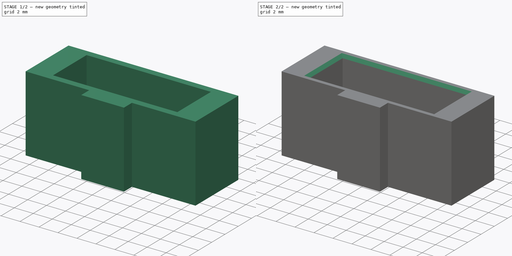
[diagram: build sequence overview — one tinted view per stage of 2, left to right]
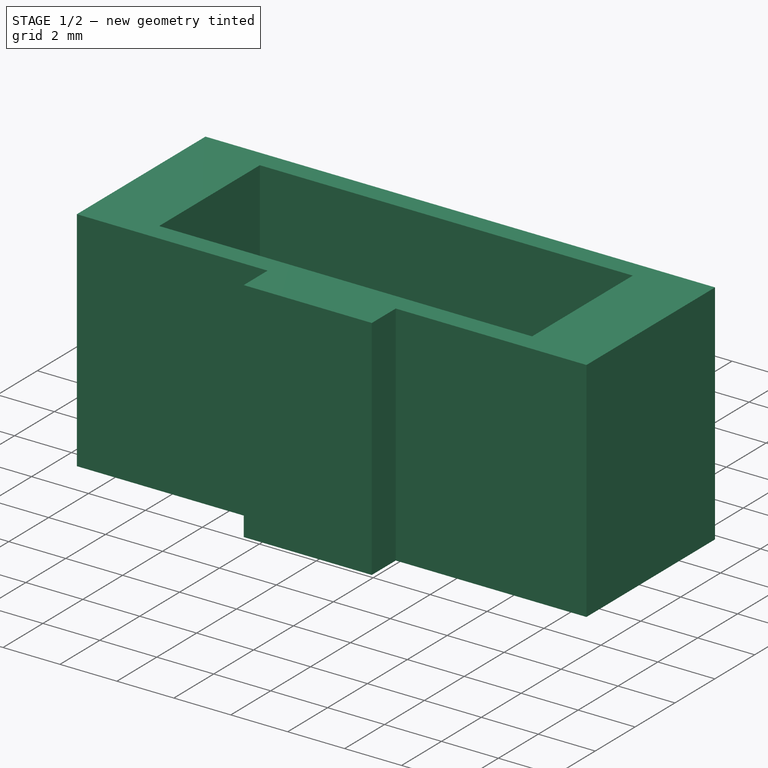
[diagram: stage 1 of 2 — iso view after this stage's code; geometry added in this stage tinted green]
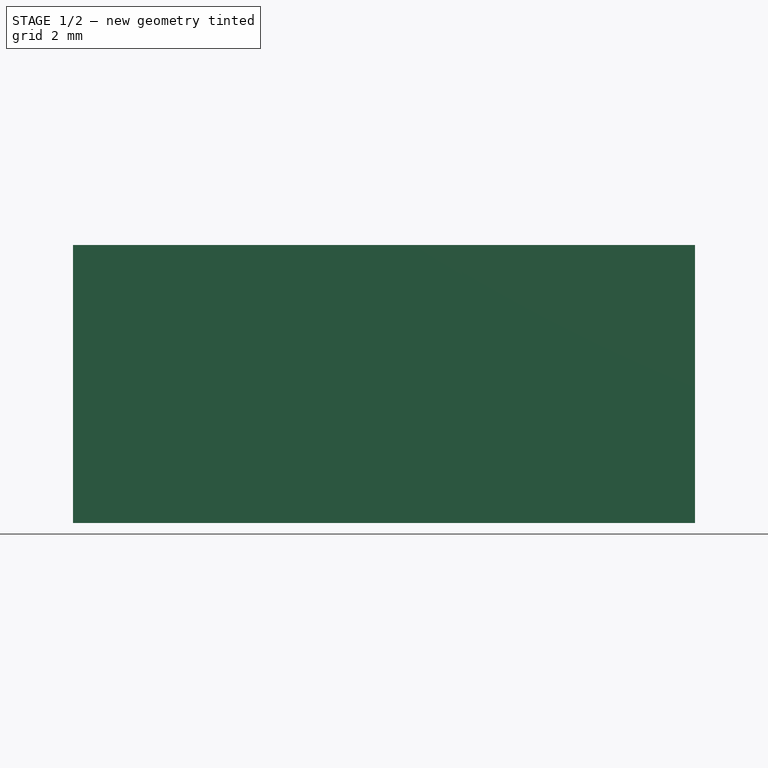
[diagram: stage 1 of 2 — front view after this stage's code; geometry added in this stage tinted green]
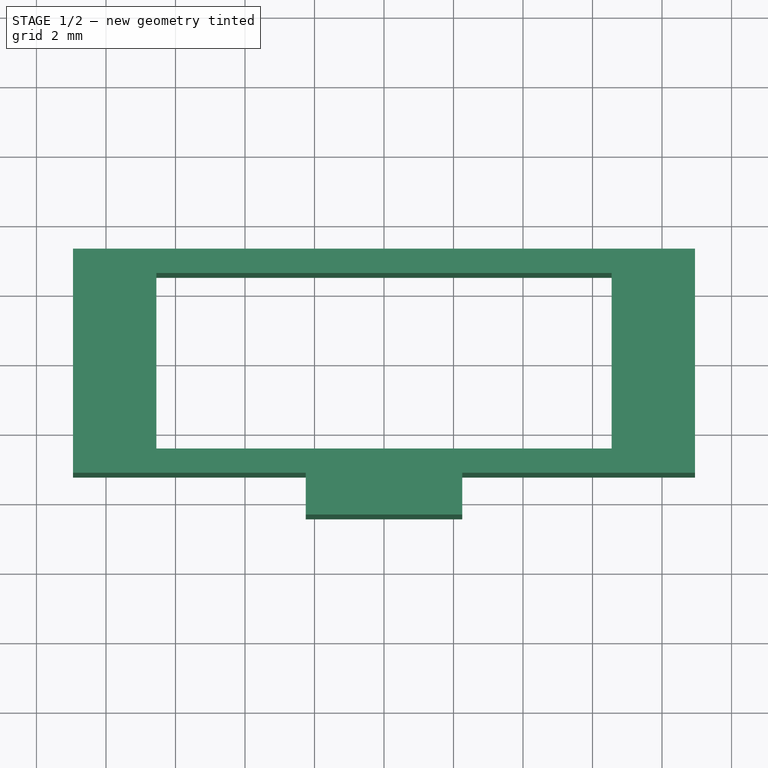
[diagram: stage 1 of 2 — top view after this stage's code; geometry added in this stage tinted green]
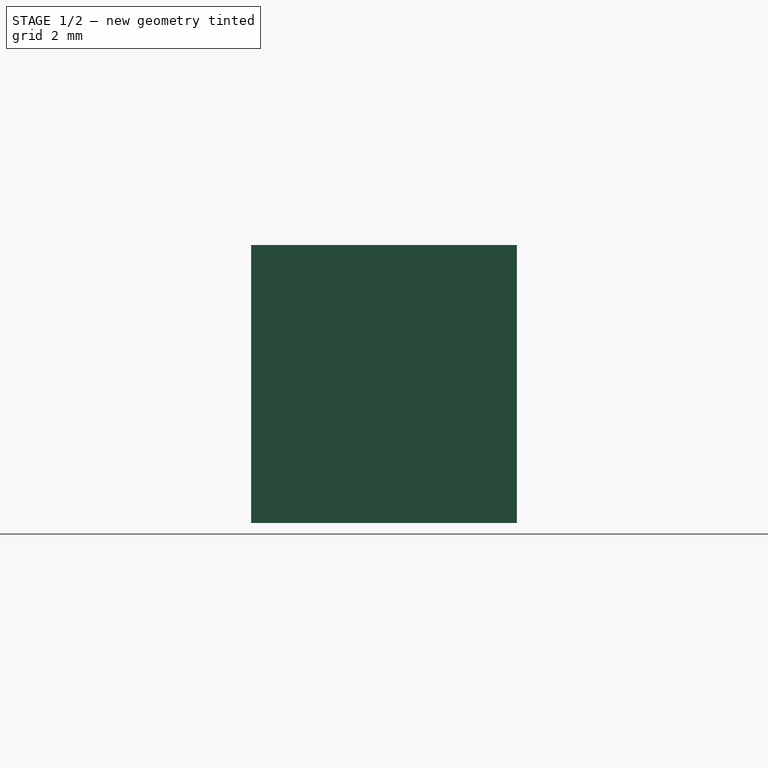
[diagram: stage 1 of 2 — right view after this stage's code; geometry added in this stage tinted green]
FCSTD DOCUMENT  (FreeCAD 1.0R38641 +468 (Git))
Label: idc_sleeve
License: All rights reserved
LicenseURL: https://en.wikipedia.org/wiki/All_rights_reserved
objects: Sketcher::SketchObject×1, PartDesign::Pad×1, PartDesign::Chamfer×1, PartDesign::Body×1
note: 9 computed .brp shape members not serialized (recipe doc carries the construction recipe); baked Part::Feature solids carry a one-line shape summary decoded from their .brp

FEATURE [Sketcher::SketchObject] Sketch
  ArcFitTolerance = 1e-06
  AttachmentSupport = -> [XY_Plane]
  FullyConstrained = true
  MakeInternals = false
  MapMode = 5
  sketch-geometry (12):
    g0: LineSegment StartX=-6.55 StartY=2.525 StartZ=0 EndX=-6.55 EndY=-2.525 EndZ=0
    g1: LineSegment StartX=-6.55 StartY=-2.525 StartZ=0 EndX=6.55 EndY=-2.525 EndZ=0
    g2: LineSegment StartX=6.55 StartY=-2.525 StartZ=0 EndX=6.55 EndY=2.525 EndZ=0
    g3: LineSegment StartX=6.55 StartY=2.525 StartZ=0 EndX=-6.55 EndY=2.525 EndZ=0
    g4: LineSegment StartX=-8.95 StartY=3.225 StartZ=0 EndX=-8.95 EndY=-3.225 EndZ=0
    g5: LineSegment StartX=8.95 StartY=-3.225 StartZ=0 EndX=8.95 EndY=3.225 EndZ=0
    g6: LineSegment StartX=8.95 StartY=3.225 StartZ=0 EndX=-8.95 EndY=3.225 EndZ=0
    g7: LineSegment StartX=-8.95 StartY=-3.225 StartZ=0 EndX=-2.25 EndY=-3.225 EndZ=0
    g8: LineSegment StartX=-2.25 StartY=-3.225 StartZ=0 EndX=-2.25 EndY=-4.425 EndZ=0
    g9: LineSegment StartX=-2.25 StartY=-4.425 StartZ=0 EndX=2.25 EndY=-4.425 EndZ=0
    g10: LineSegment StartX=2.25 StartY=-4.425 StartZ=0 EndX=2.25 EndY=-3.225 EndZ=0
    g11: LineSegment StartX=2.25 StartY=-3.225 StartZ=0 EndX=8.95 EndY=-3.225 EndZ=0
  constraints (31):
    c: Coincident(g0,g1)
    c: Coincident(g1,g2)
    c: Coincident(g2,g3)
    c: Coincident(g3,g0)
    c: Vertical(g0)
    c: Horizontal(g1)
    c: Symmetric(g1,g2,g-1)
    c: Symmetric(g0,g2,g-2)
    c: DistanceY(g2,g2) = 5.05
    c: DistanceX(g3,g3) = 13.1
    c: Coincident(g5,g6)
    c: Coincident(g6,g4)
    c: Vertical(g4)
    c: Symmetric(g5,g4,g-2)
    c: Symmetric(g5,g5,g-1)
    c: DistanceY(g2,g5) = 0.7
    c: DistanceX(g2,g5) = 2.4
    c: Coincident(g4,g7)
    c: Horizontal(g7)
    c: Coincident(g7,g8)
    c: Vertical(g8)
    c: Coincident(g8,g9)
    c: Horizontal(g9)
    c: Coincident(g9,g10)
    c: Vertical(g10)
    c: Coincident(g10,g11)
    c: Coincident(g11,g5)
    c: Horizontal(g11)
    c: Symmetric(g7,g10,g-2)
    c: DistanceX(g9,g9) = 4.5
    c: DistanceY(g10,g10) = 1.2
FEATURE [PartDesign::Pad] Pad
  Direction = (0,0,1)
  Length = 8
  Length2 = 10
  Profile = -> Sketch
  ReferenceAxis = -> Sketch [N_Axis]
  Refine = true
  Suppressed = false
  Type = 0
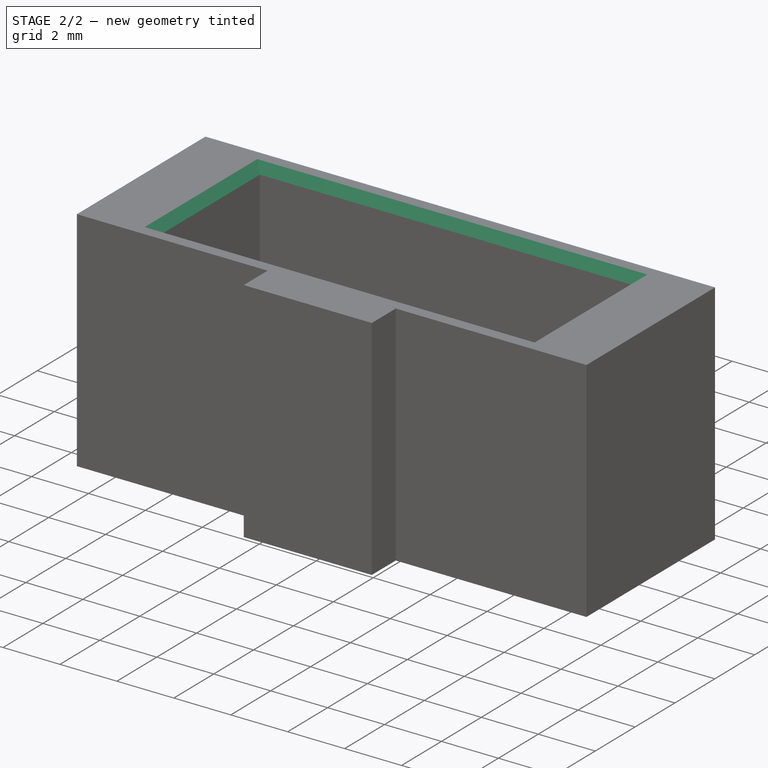
[diagram: stage 2 of 2 — iso view after this stage's code; geometry added in this stage tinted green]
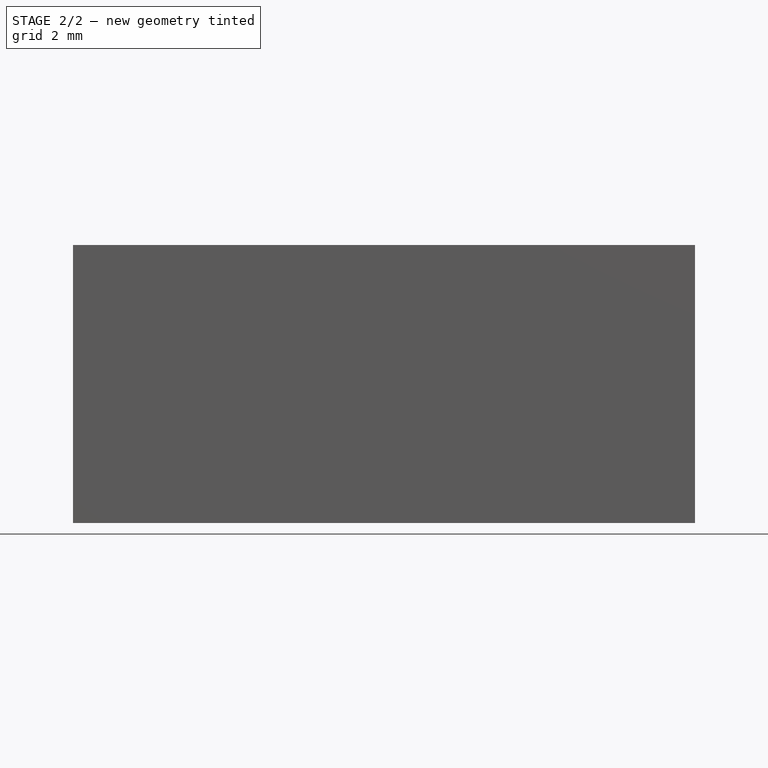
[diagram: stage 2 of 2 — front view after this stage's code; geometry added in this stage tinted green]
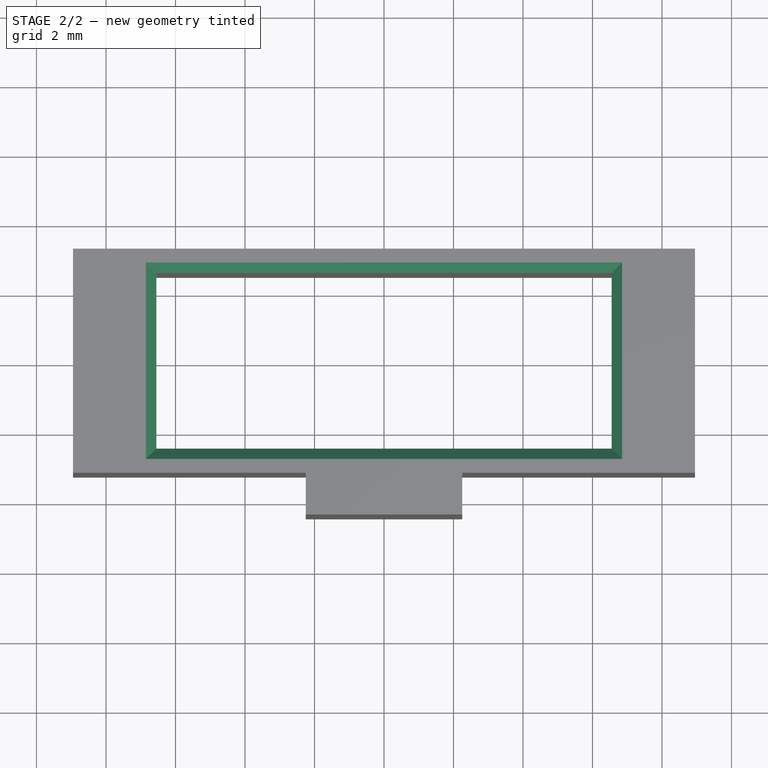
[diagram: stage 2 of 2 — top view after this stage's code; geometry added in this stage tinted green]
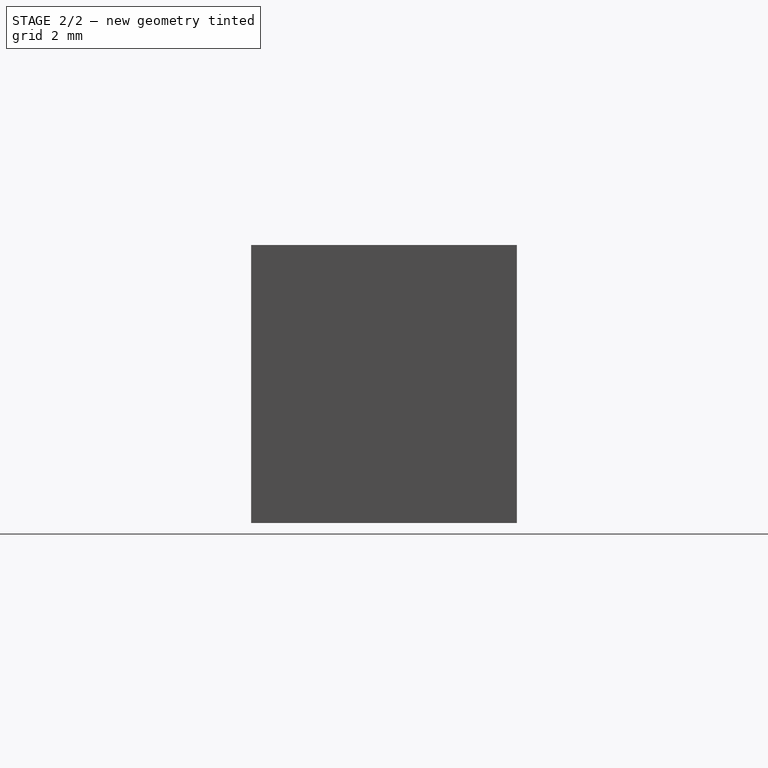
[diagram: stage 2 of 2 — right view after this stage's code; geometry added in this stage tinted green]
FEATURE [PartDesign::Chamfer] Chamfer
  Angle = 45
  Base = -> Pad [Edge34,Edge36,Edge28,Edge31]
  BaseFeature = -> Pad
  ChamferType = 0
  FlipDirection = false
  Refine = true
  Size = 0.3
  Size2 = 1
  SupportTransform = false
  Suppressed = false
  UseAllEdges = false
FEATURE [PartDesign::Body] Body  label="Zawartość"
  AllowCompound = false
  Group = -> [Sketch,Pad,Chamfer]
  Origin = -> Origin
  Tip = -> Chamfer
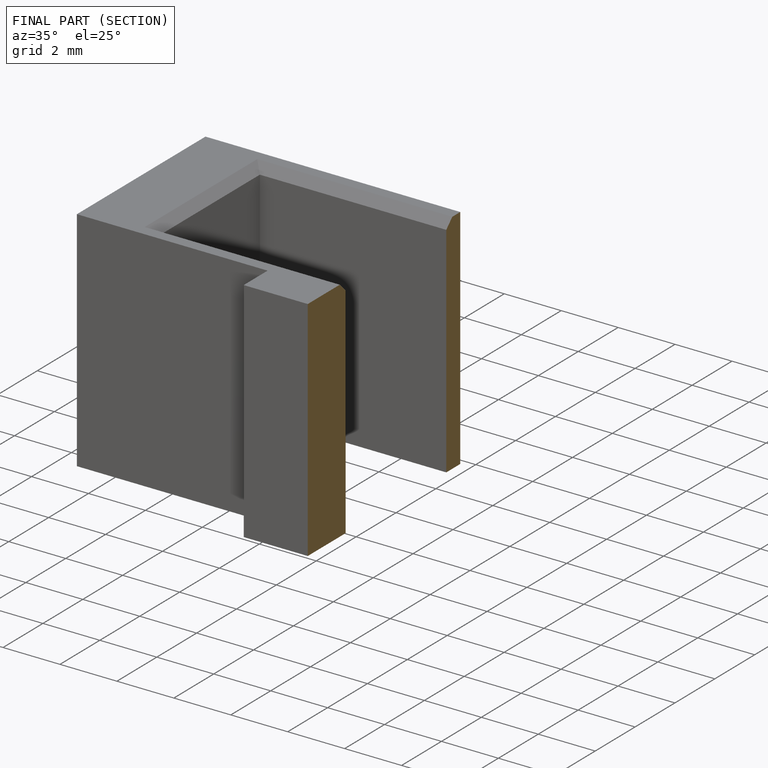
[diagram: finished part — half-section view (interior)]
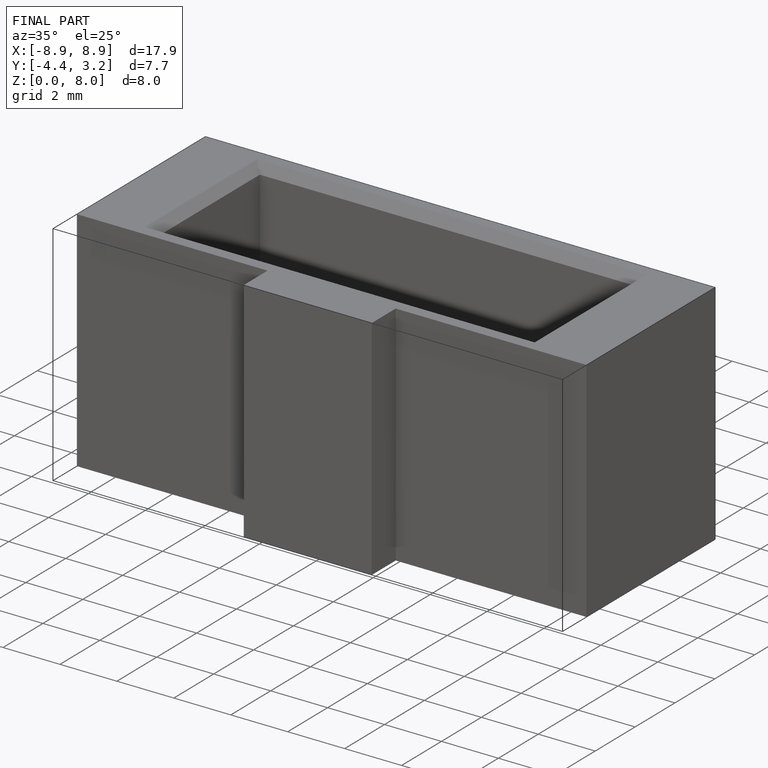
[diagram: finished part — iso view with bounding-box wireframe]
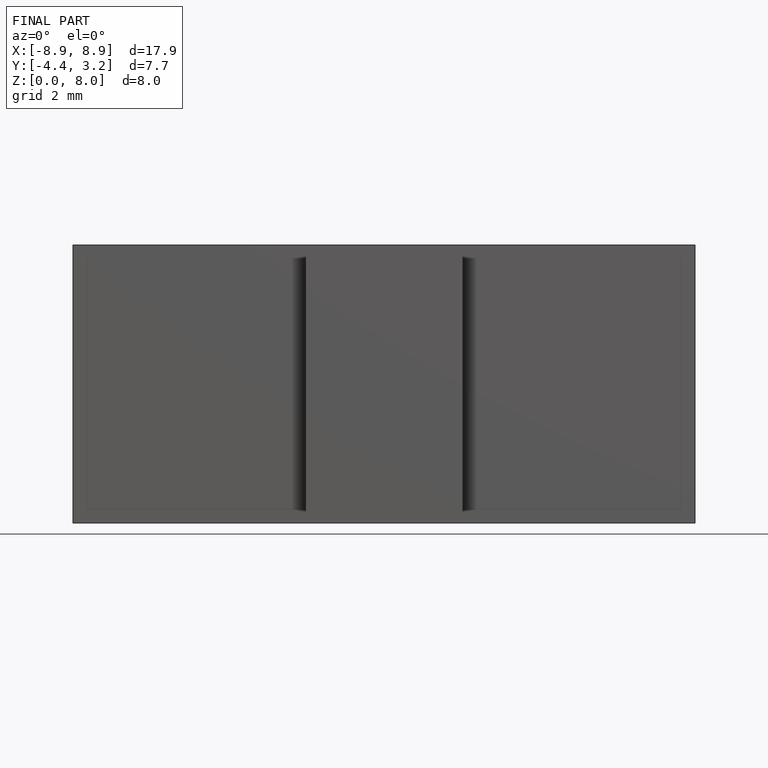
[diagram: finished part — front view with bounding-box wireframe]
